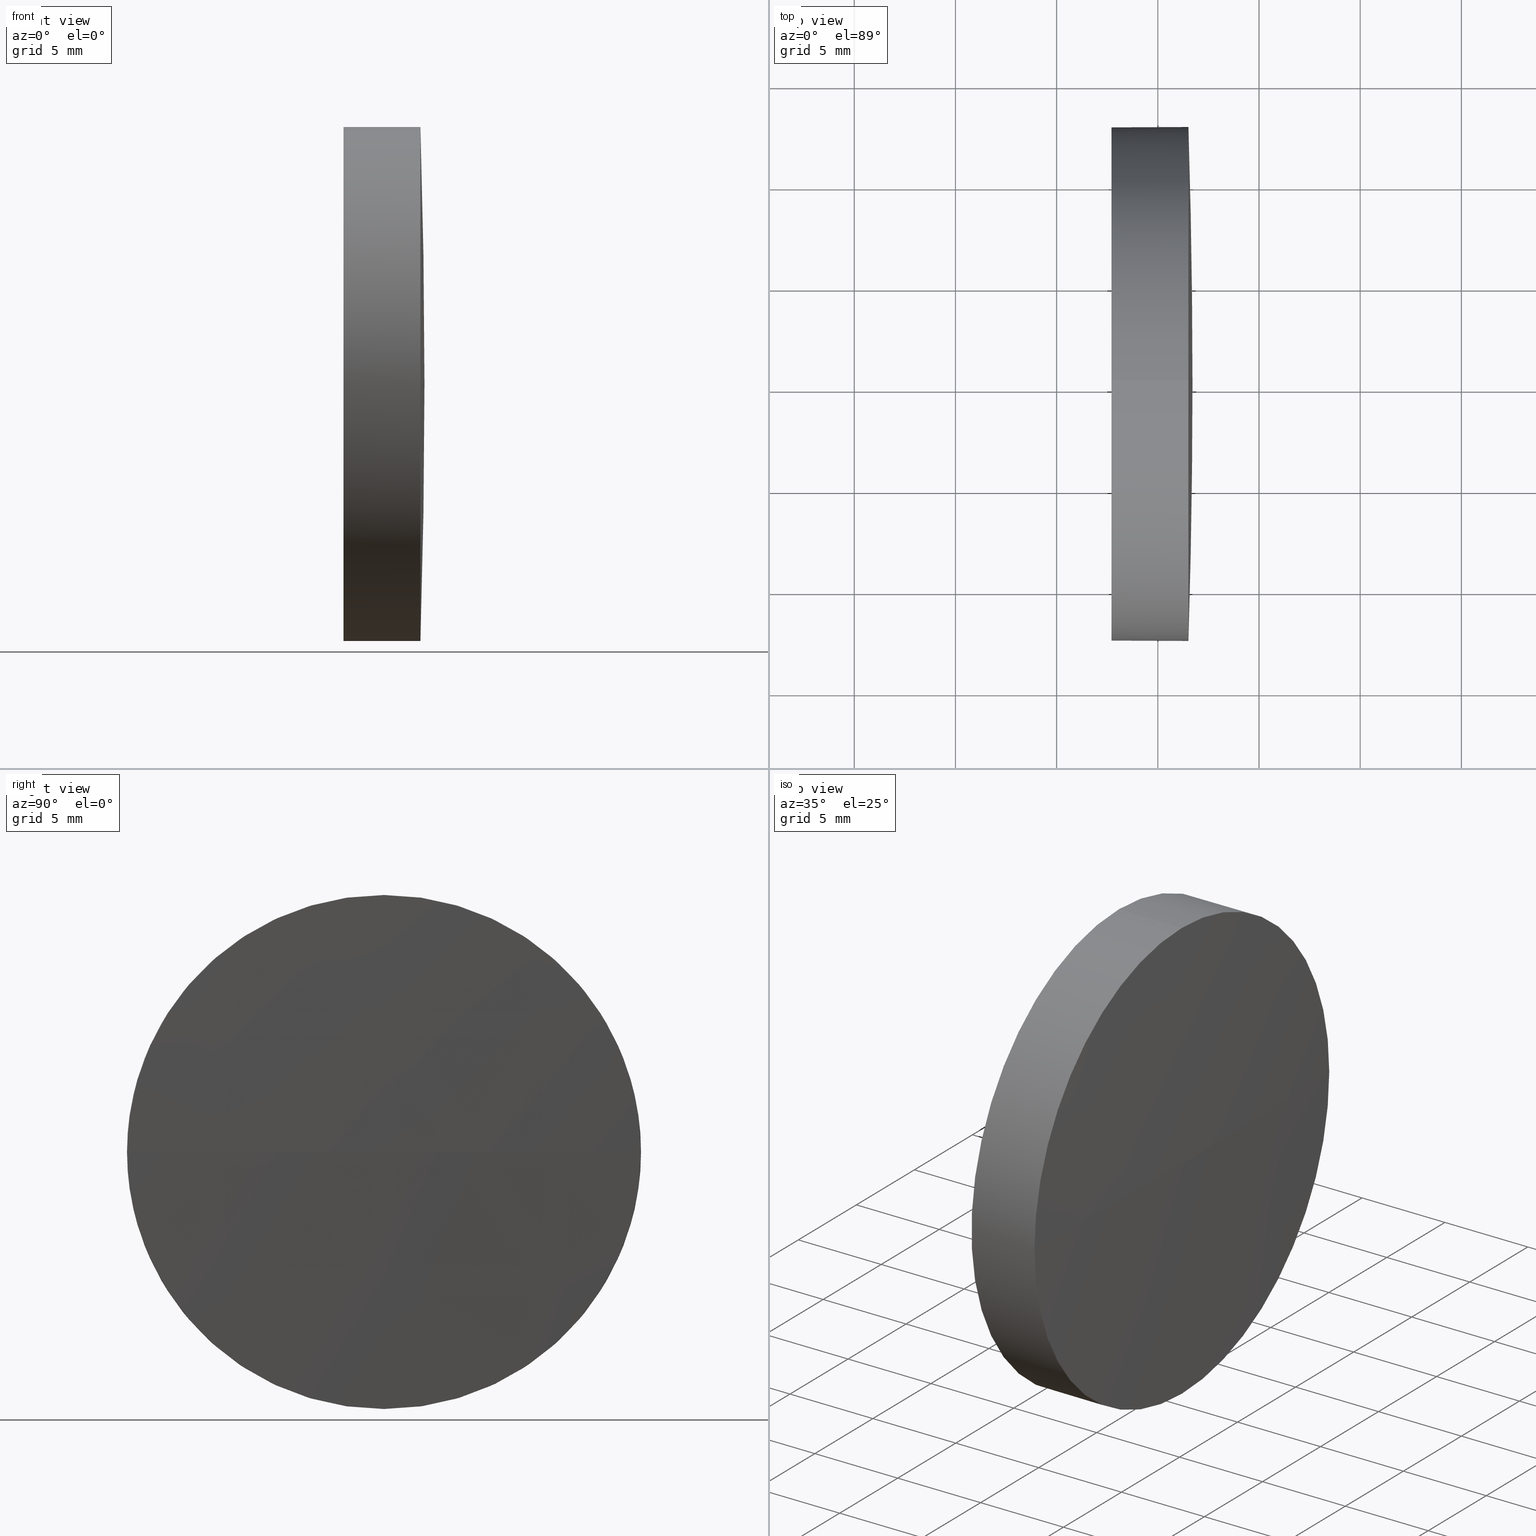
[diagram: canonical four-view strip — front | top / right | iso, engineering-drawing reading convention]
A machine part, canonical four-view strip (front | top / right | iso — engineering-drawing reading convention). The complete STEP part file that produces these views, byte-faithful:
ISO-10303-21;
HEADER;
FILE_DESCRIPTION (( 'STEP AP214' ),
    '1' );
FILE_NAME ('100495.STEP',
    '2019-06-12T05:57:18',
    ( '' ),
    ( '' ),
    'SwSTEP 2.0',
    'SolidWorks 2016',
    '' );
FILE_SCHEMA (( 'AUTOMOTIVE_DESIGN' ));
ENDSEC;

DATA;
#1 = PRESENTATION_LAYER_ASSIGNMENT (  '', '', ( #182 ) ) ;
#2 = EDGE_LOOP ( 'NONE', ( #104, #62, #170, #96 ) ) ;
#3 = VECTOR ( 'NONE', #93, 1000.000000000000000 ) ;
#4 = CYLINDRICAL_SURFACE ( 'NONE', #7, 12.70000000000001700 ) ;
#5 = AXIS2_PLACEMENT_3D ( 'NONE', #81, #8, #27 ) ;
#6 = ADVANCED_FACE ( 'NONE', ( #53 ), #15, .T. ) ;
#7 = AXIS2_PLACEMENT_3D ( 'NONE', #161, #31, #90 ) ;
#8 = DIRECTION ( 'NONE',  ( -1.000000000000000000, -0.0000000000000000000, -0.0000000000000000000 ) ) ;
#9 = MECHANICAL_DESIGN_GEOMETRIC_PRESENTATION_REPRESENTATION (  '', ( #20 ), #110 ) ;
#10 = EDGE_CURVE ( 'NONE', #132, #100, #103, .T. ) ;
#11 = VECTOR ( 'NONE', #155, 1000.000000000000000 ) ;
#12 = ORIENTED_EDGE ( 'NONE', *, *, #139, .F. ) ;
#13 =( NAMED_UNIT ( * ) PLANE_ANGLE_UNIT ( ) SI_UNIT ( $, .RADIAN. ) );
#14 = DIRECTION ( 'NONE',  ( -1.000000000000000000, 0.0000000000000000000, 0.0000000000000000000 ) ) ;
#15 = CYLINDRICAL_SURFACE ( 'NONE', #134, 12.70000000000001700 ) ;
#16 = APPLICATION_PROTOCOL_DEFINITION ( 'draft international standard', 'automotive_design', 1998, #70 ) ;
#17 =( NAMED_UNIT ( * ) PLANE_ANGLE_UNIT ( ) SI_UNIT ( $, .RADIAN. ) );
#18 = ORIENTED_EDGE ( 'NONE', *, *, #10, .T. ) ;
#19 = VERTEX_POINT ( 'NONE', #74 ) ;
#20 = STYLED_ITEM ( 'NONE', ( #37 ), #120 ) ;
#21 = SPHERICAL_SURFACE ( 'NONE', #73, 403.3249999999942500 ) ;
#22 = CLOSED_SHELL ( 'NONE', ( #6, #137, #124, #26, #169 ) ) ;
#23 = AXIS2_PLACEMENT_3D ( 'NONE', #165, #79, #142 ) ;
#24 = EDGE_CURVE ( 'NONE', #162, #92, #123, .T. ) ;
#25 = ORIENTED_EDGE ( 'NONE', *, *, #24, .F. ) ;
#26 = ADVANCED_FACE ( 'NONE', ( #86 ), #4, .T. ) ;
#27 = DIRECTION ( 'NONE',  ( 0.0000000000000000000, 0.0000000000000000000, 1.000000000000000000 ) ) ;
#28 = CARTESIAN_POINT ( 'NONE',  ( 487.7125078025071600, 125.1785277586624500, 12.70000000000001700 ) ) ;
#29 = CARTESIAN_POINT ( 'NONE',  ( 491.5125078025071200, 125.1785277586624500, 0.0000000000000000000 ) ) ;
#30 = PRESENTATION_LAYER_ASSIGNMENT (  '', '', ( #20 ) ) ;
#31 = DIRECTION ( 'NONE',  ( -1.000000000000000000, -0.0000000000000000000, -0.0000000000000000000 ) ) ;
#32 = DIRECTION ( 'NONE',  ( 0.0000000000000000000, -1.224646799147353200E-016, 1.000000000000000000 ) ) ;
#33 = CARTESIAN_POINT ( 'NONE',  ( 491.7125078025071000, 125.1785277586635900, 0.0000000000000000000 ) ) ;
#34 = APPLICATION_PROTOCOL_DEFINITION ( 'draft international standard', 'automotive_design', 1998, #84 ) ;
#35 =( GEOMETRIC_REPRESENTATION_CONTEXT ( 3 ) GLOBAL_UNCERTAINTY_ASSIGNED_CONTEXT ( ( #151 ) ) GLOBAL_UNIT_ASSIGNED_CONTEXT ( ( #131, #17, #130 ) ) REPRESENTATION_CONTEXT ( 'NONE', 'WORKASPACE' ) );
#36 = EDGE_CURVE ( 'NONE', #100, #92, #186, .T. ) ;
#37 = PRESENTATION_STYLE_ASSIGNMENT (( #166 ) ) ;
#38 = MANIFOLD_SOLID_BREP ( '��ת1', #22 ) ;
#39 = ORIENTED_EDGE ( 'NONE', *, *, #136, .F. ) ;
#40 = EDGE_LOOP ( 'NONE', ( #18, #171, #12, #164, #149 ) ) ;
#41 = DIRECTION ( 'NONE',  ( -1.000000000000000000, -0.0000000000000000000, -0.0000000000000000000 ) ) ;
#42 = FILL_AREA_STYLE_COLOUR ( '', #117 ) ;
#43 = PRODUCT_RELATED_PRODUCT_CATEGORY ( 'part', '', ( #101 ) ) ;
#44 = EDGE_CURVE ( 'NONE', #19, #132, #54, .T. ) ;
#45 = DIRECTION ( 'NONE',  ( -1.000000000000000000, -0.0000000000000000000, -0.0000000000000000000 ) ) ;
#46 = LINE ( 'NONE', #144, #11 ) ;
#47 = DIRECTION ( 'NONE',  ( 0.0000000000000000000, 0.0000000000000000000, 1.000000000000000000 ) ) ;
#48 = CARTESIAN_POINT ( 'NONE',  ( 482.0826117513499900, 125.1785277586624500, -12.70000000000001700 ) ) ;
#49 =( NAMED_UNIT ( * ) PLANE_ANGLE_UNIT ( ) SI_UNIT ( $, .RADIAN. ) );
#50 = CARTESIAN_POINT ( 'NONE',  ( 491.5125078025071200, 125.1785277586624500, 0.0000000000000000000 ) ) ;
#51 = CARTESIAN_POINT ( 'NONE',  ( 0.0000000000000000000, 0.0000000000000000000, 0.0000000000000000000 ) ) ;
#52 = CIRCLE ( 'NONE', #55, 403.3249999999942500 ) ;
#53 = FACE_OUTER_BOUND ( 'NONE', #40, .T. ) ;
#54 = CIRCLE ( 'NONE', #108, 12.70000000000001700 ) ;
#55 = AXIS2_PLACEMENT_3D ( 'NONE', #113, #32, #175 ) ;
#56 = ORIENTED_EDGE ( 'NONE', *, *, #148, .T. ) ;
#57 = SURFACE_STYLE_FILL_AREA ( #61 ) ;
#58 = UNCERTAINTY_MEASURE_WITH_UNIT (LENGTH_MEASURE( 1.000000000000000100E-005 ), #154, 'distance_accuracy_value', 'NONE');
#59 = SURFACE_STYLE_FILL_AREA ( #115 ) ;
#60 = CARTESIAN_POINT ( 'NONE',  ( 487.7125078025071600, 125.1785277586624500, 0.0000000000000000000 ) ) ;
#61 = FILL_AREA_STYLE ('',( #42 ) ) ;
#62 = ORIENTED_EDGE ( 'NONE', *, *, #24, .T. ) ;
#63 = PRODUCT_DEFINITION_CONTEXT ( 'detailed design', #70, 'design' ) ;
#64 = CARTESIAN_POINT ( 'NONE',  ( 491.5125078025071200, 125.1785277586624500, 0.0000000000000000000 ) ) ;
#65 = CARTESIAN_POINT ( 'NONE',  ( 491.5125078025071200, 137.8785277586626700, 1.555301434917022300E-015 ) ) ;
#66 =( LENGTH_UNIT ( ) NAMED_UNIT ( * ) SI_UNIT ( .MILLI., .METRE. ) );
#67 = CARTESIAN_POINT ( 'NONE',  ( 487.7125078025071600, 125.1785277586624500, 0.0000000000000000000 ) ) ;
#68 = DIRECTION ( 'NONE',  ( 1.000000000000000000, 0.0000000000000000000, 0.0000000000000000000 ) ) ;
#69 = ORIENTED_EDGE ( 'NONE', *, *, #140, .T. ) ;
#70 = APPLICATION_CONTEXT ( 'automotive_design' ) ;
#71 = AXIS2_PLACEMENT_3D ( 'NONE', #67, #168, #109 ) ;
#72 =( GEOMETRIC_REPRESENTATION_CONTEXT ( 3 ) GLOBAL_UNCERTAINTY_ASSIGNED_CONTEXT ( ( #58 ) ) GLOBAL_UNIT_ASSIGNED_CONTEXT ( ( #154, #13, #141 ) ) REPRESENTATION_CONTEXT ( 'NONE', 'WORKASPACE' ) );
#73 = AXIS2_PLACEMENT_3D ( 'NONE', #152, #129, #167 ) ;
#74 = CARTESIAN_POINT ( 'NONE',  ( 491.5125078025071200, 125.1785277586624500, 12.70000000000001700 ) ) ;
#75 = DIRECTION ( 'NONE',  ( 0.0000000000000000000, 0.0000000000000000000, 1.000000000000000000 ) ) ;
#76 = DIRECTION ( 'NONE',  ( 0.0000000000000000000, 0.0000000000000000000, 1.000000000000000000 ) ) ;
#77 = CARTESIAN_POINT ( 'NONE',  ( 491.5125078025071200, 125.1785277586624500, 0.0000000000000000000 ) ) ;
#78 = EDGE_LOOP ( 'NONE', ( #133, #88, #69, #56, #39 ) ) ;
#79 = DIRECTION ( 'NONE',  ( 0.0000000000000000000, 0.0000000000000000000, 1.000000000000000000 ) ) ;
#80 = SURFACE_SIDE_STYLE ('',( #59 ) ) ;
#81 = CARTESIAN_POINT ( 'NONE',  ( 487.7125078025071600, 125.1785277586624500, 0.0000000000000000000 ) ) ;
#82 = AXIS2_PLACEMENT_3D ( 'NONE', #105, #94, #14 ) ;
#83 = DIRECTION ( 'NONE',  ( 0.0000000000000000000, 0.0000000000000000000, 1.000000000000000000 ) ) ;
#84 = APPLICATION_CONTEXT ( 'automotive_design' ) ;
#85 = FACE_OUTER_BOUND ( 'NONE', #2, .T. ) ;
#86 = FACE_OUTER_BOUND ( 'NONE', #78, .T. ) ;
#87 = SPHERICAL_SURFACE ( 'NONE', #23, 403.3249999999942500 ) ;
#88 = ORIENTED_EDGE ( 'NONE', *, *, #36, .T. ) ;
#89 = AXIS2_PLACEMENT_3D ( 'NONE', #29, #45, #125 ) ;
#90 = DIRECTION ( 'NONE',  ( 0.0000000000000000000, 0.0000000000000000000, 1.000000000000000000 ) ) ;
#91 = COLOUR_RGB ( '',1.000000000000000000, 1.000000000000000000, 1.000000000000000000 ) ;
#92 = VERTEX_POINT ( 'NONE', #128 ) ;
#93 = DIRECTION ( 'NONE',  ( -1.000000000000000000, -0.0000000000000000000, -0.0000000000000000000 ) ) ;
#94 = DIRECTION ( 'NONE',  ( 0.0000000000000000000, 0.0000000000000000000, -1.000000000000000000 ) ) ;
#95 = UNCERTAINTY_MEASURE_WITH_UNIT (LENGTH_MEASURE( 1.000000000000000100E-005 ), #66, 'distance_accuracy_value', 'NONE');
#96 = ORIENTED_EDGE ( 'NONE', *, *, #10, .F. ) ;
#97 = AXIS2_PLACEMENT_3D ( 'NONE', #51, #178, #68 ) ;
#98 = EDGE_CURVE ( 'NONE', #162, #132, #52, .T. ) ;
#99 = SHAPE_DEFINITION_REPRESENTATION ( #127, #120 ) ;
#100 = VERTEX_POINT ( 'NONE', #179 ) ;
#101 = PRODUCT ( '100495', '100495', '', ( #183 ) ) ;
#102 = EDGE_LOOP ( 'NONE', ( #25, #112, #158, #122 ) ) ;
#103 = CIRCLE ( 'NONE', #138, 12.70000000000001700 ) ;
#104 = ORIENTED_EDGE ( 'NONE', *, *, #98, .F. ) ;
#105 = CARTESIAN_POINT ( 'NONE',  ( 88.38750780251280000, 125.1785277586636200, 0.0000000000000000000 ) ) ;
#106 = SURFACE_SIDE_STYLE ('',( #57 ) ) ;
#107 = DIRECTION ( 'NONE',  ( -1.000000000000000000, -0.0000000000000000000, -0.0000000000000000000 ) ) ;
#108 = AXIS2_PLACEMENT_3D ( 'NONE', #77, #172, #126 ) ;
#109 = DIRECTION ( 'NONE',  ( 0.0000000000000000000, 0.0000000000000000000, -1.000000000000000000 ) ) ;
#110 =( GEOMETRIC_REPRESENTATION_CONTEXT ( 3 ) GLOBAL_UNCERTAINTY_ASSIGNED_CONTEXT ( ( #95 ) ) GLOBAL_UNIT_ASSIGNED_CONTEXT ( ( #66, #49, #181 ) ) REPRESENTATION_CONTEXT ( 'NONE', 'WORKASPACE' ) );
#111 = EDGE_CURVE ( 'NONE', #100, #146, #185, .T. ) ;
#112 = ORIENTED_EDGE ( 'NONE', *, *, #98, .T. ) ;
#113 = CARTESIAN_POINT ( 'NONE',  ( 88.38750780251280000, 125.1785277586636200, 0.0000000000000000000 ) ) ;
#114 = FACE_OUTER_BOUND ( 'NONE', #160, .T. ) ;
#115 = FILL_AREA_STYLE ('',( #116 ) ) ;
#116 = FILL_AREA_STYLE_COLOUR ( '', #91 ) ;
#117 = COLOUR_RGB ( '',1.000000000000000000, 1.000000000000000000, 1.000000000000000000 ) ;
#118 = CARTESIAN_POINT ( 'NONE',  ( 487.7125078025071600, 125.1785277586624500, -12.70000000000001700 ) ) ;
#119 = AXIS2_PLACEMENT_3D ( 'NONE', #60, #107, #76 ) ;
#120 = ADVANCED_BREP_SHAPE_REPRESENTATION ( '100495', ( #38, #97 ), #35 ) ;
#121 = CIRCLE ( 'NONE', #5, 12.70000000000001700 ) ;
#122 = ORIENTED_EDGE ( 'NONE', *, *, #140, .F. ) ;
#123 = CIRCLE ( 'NONE', #82, 403.3249999999942500 ) ;
#124 = ADVANCED_FACE ( 'NONE', ( #85 ), #21, .T. ) ;
#125 = DIRECTION ( 'NONE',  ( 0.0000000000000000000, 0.0000000000000000000, 1.000000000000000000 ) ) ;
#126 = DIRECTION ( 'NONE',  ( 0.0000000000000000000, 0.0000000000000000000, 1.000000000000000000 ) ) ;
#127 = PRODUCT_DEFINITION_SHAPE ( 'NONE', 'NONE',  #135 ) ;
#128 = CARTESIAN_POINT ( 'NONE',  ( 491.5125078025071200, 112.4785277586634000, 0.0000000000000000000 ) ) ;
#129 = DIRECTION ( 'NONE',  ( 0.0000000000000000000, 0.0000000000000000000, 1.000000000000000000 ) ) ;
#130 =( NAMED_UNIT ( * ) SI_UNIT ( $, .STERADIAN. ) SOLID_ANGLE_UNIT ( ) );
#131 =( LENGTH_UNIT ( ) NAMED_UNIT ( * ) SI_UNIT ( .MILLI., .METRE. ) );
#132 = VERTEX_POINT ( 'NONE', #65 ) ;
#133 = ORIENTED_EDGE ( 'NONE', *, *, #111, .F. ) ;
#134 = AXIS2_PLACEMENT_3D ( 'NONE', #150, #41, #75 ) ;
#135 = PRODUCT_DEFINITION ( 'δ֪', '', #156, #63 ) ;
#136 = EDGE_CURVE ( 'NONE', #146, #145, #173, .T. ) ;
#137 = ADVANCED_FACE ( 'NONE', ( #157 ), #87, .T. ) ;
#138 = AXIS2_PLACEMENT_3D ( 'NONE', #64, #163, #47 ) ;
#139 = EDGE_CURVE ( 'NONE', #145, #146, #121, .T. ) ;
#140 = EDGE_CURVE ( 'NONE', #92, #19, #153, .T. ) ;
#141 =( NAMED_UNIT ( * ) SI_UNIT ( $, .STERADIAN. ) SOLID_ANGLE_UNIT ( ) );
#142 = DIRECTION ( 'NONE',  ( 0.0000000000000000000, -1.000000000000000000, 0.0000000000000000000 ) ) ;
#143 = PLANE ( 'NONE',  #71 ) ;
#144 = CARTESIAN_POINT ( 'NONE',  ( 482.0826117513499900, 125.1785277586624500, 12.70000000000001700 ) ) ;
#145 = VERTEX_POINT ( 'NONE', #28 ) ;
#146 = VERTEX_POINT ( 'NONE', #118 ) ;
#147 = AXIS2_PLACEMENT_3D ( 'NONE', #50, #180, #83 ) ;
#148 = EDGE_CURVE ( 'NONE', #19, #145, #46, .T. ) ;
#149 = ORIENTED_EDGE ( 'NONE', *, *, #44, .T. ) ;
#150 = CARTESIAN_POINT ( 'NONE',  ( 482.0826117513499900, 125.1785277586624500, 0.0000000000000000000 ) ) ;
#151 = UNCERTAINTY_MEASURE_WITH_UNIT (LENGTH_MEASURE( 1.000000000000000100E-005 ), #131, 'distance_accuracy_value', 'NONE');
#152 = CARTESIAN_POINT ( 'NONE',  ( 88.38750780251280000, 125.1785277586636200, 0.0000000000000000000 ) ) ;
#153 = CIRCLE ( 'NONE', #147, 12.70000000000001700 ) ;
#154 =( LENGTH_UNIT ( ) NAMED_UNIT ( * ) SI_UNIT ( .MILLI., .METRE. ) );
#155 = DIRECTION ( 'NONE',  ( -1.000000000000000000, -0.0000000000000000000, -0.0000000000000000000 ) ) ;
#156 = PRODUCT_DEFINITION_FORMATION_WITH_SPECIFIED_SOURCE ( '�κ�', '', #101, .NOT_KNOWN. ) ;
#157 = FACE_OUTER_BOUND ( 'NONE', #102, .T. ) ;
#158 = ORIENTED_EDGE ( 'NONE', *, *, #44, .F. ) ;
#159 = PRESENTATION_STYLE_ASSIGNMENT (( #177 ) ) ;
#160 = EDGE_LOOP ( 'NONE', ( #174, #184 ) ) ;
#161 = CARTESIAN_POINT ( 'NONE',  ( 482.0826117513499900, 125.1785277586624500, 0.0000000000000000000 ) ) ;
#162 = VERTEX_POINT ( 'NONE', #33 ) ;
#163 = DIRECTION ( 'NONE',  ( -1.000000000000000000, -0.0000000000000000000, -0.0000000000000000000 ) ) ;
#164 = ORIENTED_EDGE ( 'NONE', *, *, #148, .F. ) ;
#165 = CARTESIAN_POINT ( 'NONE',  ( 88.38750780251280000, 125.1785277586636200, 0.0000000000000000000 ) ) ;
#166 = SURFACE_STYLE_USAGE ( .BOTH. , #80 ) ;
#167 = DIRECTION ( 'NONE',  ( 0.0000000000000000000, -1.000000000000000000, 0.0000000000000000000 ) ) ;
#168 = DIRECTION ( 'NONE',  ( 1.000000000000000000, 0.0000000000000000000, 0.0000000000000000000 ) ) ;
#169 = ADVANCED_FACE ( 'NONE', ( #114 ), #143, .F. ) ;
#170 = ORIENTED_EDGE ( 'NONE', *, *, #36, .F. ) ;
#171 = ORIENTED_EDGE ( 'NONE', *, *, #111, .T. ) ;
#172 = DIRECTION ( 'NONE',  ( -1.000000000000000000, -0.0000000000000000000, -0.0000000000000000000 ) ) ;
#173 = CIRCLE ( 'NONE', #119, 12.70000000000001700 ) ;
#174 = ORIENTED_EDGE ( 'NONE', *, *, #139, .T. ) ;
#175 = DIRECTION ( 'NONE',  ( 0.0000000000000000000, -1.000000000000000000, -1.224646799147353200E-016 ) ) ;
#176 = MECHANICAL_DESIGN_GEOMETRIC_PRESENTATION_REPRESENTATION (  '', ( #182 ), #72 ) ;
#177 = SURFACE_STYLE_USAGE ( .BOTH. , #106 ) ;
#178 = DIRECTION ( 'NONE',  ( 0.0000000000000000000, 0.0000000000000000000, 1.000000000000000000 ) ) ;
#179 = CARTESIAN_POINT ( 'NONE',  ( 491.5125078025071200, 125.1785277586624500, -12.70000000000001700 ) ) ;
#180 = DIRECTION ( 'NONE',  ( -1.000000000000000000, -0.0000000000000000000, -0.0000000000000000000 ) ) ;
#181 =( NAMED_UNIT ( * ) SI_UNIT ( $, .STERADIAN. ) SOLID_ANGLE_UNIT ( ) );
#182 = STYLED_ITEM ( 'NONE', ( #159 ), #38 ) ;
#183 = PRODUCT_CONTEXT ( 'NONE', #84, 'mechanical' ) ;
#184 = ORIENTED_EDGE ( 'NONE', *, *, #136, .T. ) ;
#185 = LINE ( 'NONE', #48, #3 ) ;
#186 = CIRCLE ( 'NONE', #89, 12.70000000000001700 ) ;
ENDSEC;
END-ISO-10303-21;
